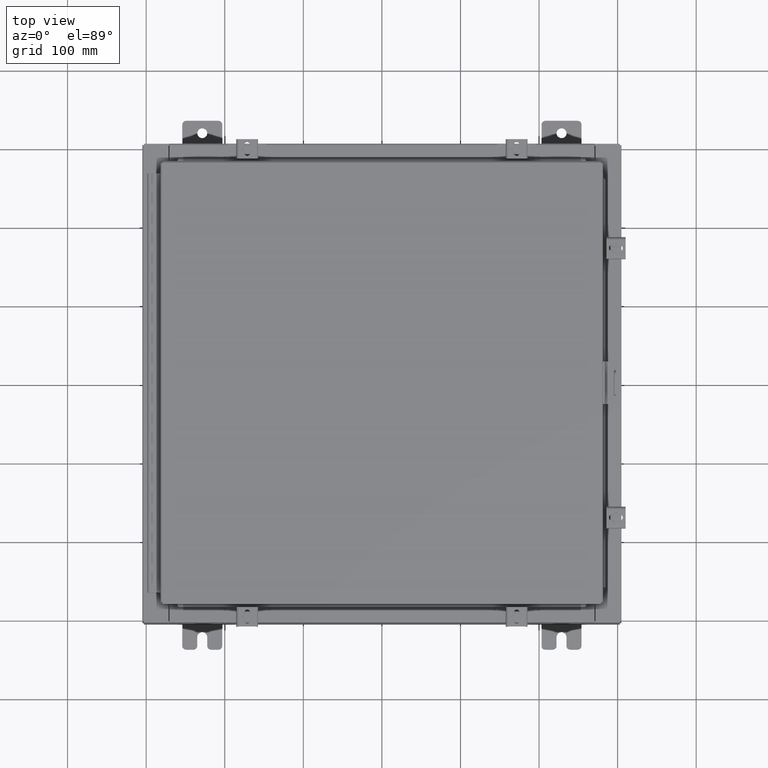
[diagram: clean part render]
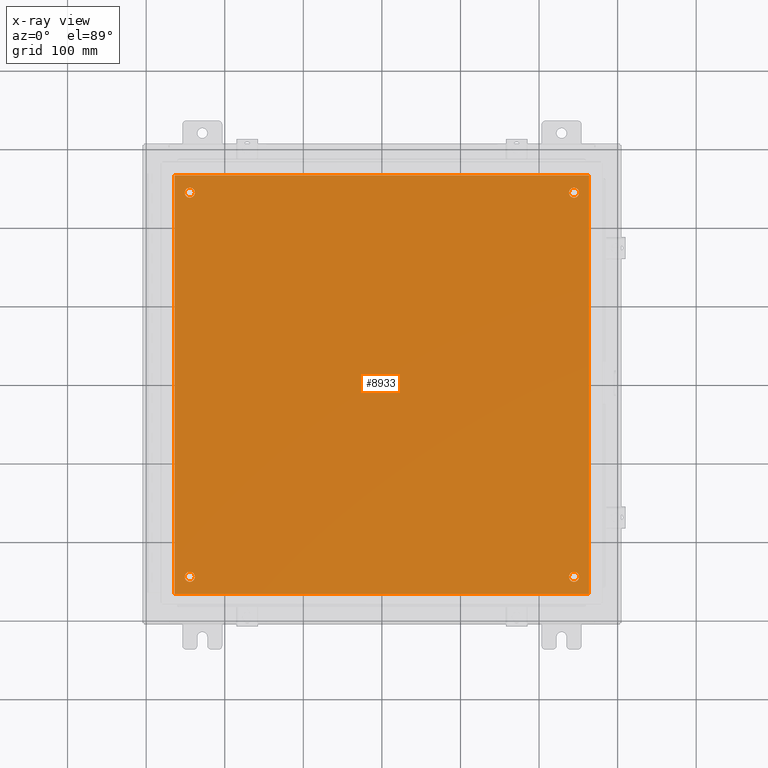
[diagram: x-ray — body ghosted, one internal face saturated and labeled with its STEP entity id]
A machine part, top view, then the same camera in x-ray: the body is ghosted and one INTERNAL B-rep face — a face not visible from any outside direction — is saturated and labeled: STEP entity #8933.
In plain terms, the highlighted planar face has unit normal (0, 0, -1).
Its self-contained STEP definition (entity closure, byte-faithful):
#9 = DIRECTION ( 'NONE',  ( -0.0000000000000000000, -0.0000000000000000000, 1.000000000000000000 ) ) ;
#284 = FACE_BOUND ( 'NONE', #22310, .T. ) ;
#746 = CARTESIAN_POINT ( 'NONE',  ( -9.875000000000005300, 9.625000000000001800, -0.1039999999999999800 ) ) ;
#803 = CIRCLE ( 'NONE', #11384, 0.2499999999999976100 ) ;
#1202 = VERTEX_POINT ( 'NONE', #5761 ) ;
#1517 = VERTEX_POINT ( 'NONE', #746 ) ;
#1518 = FACE_BOUND ( 'NONE', #27780, .T. ) ;
#1814 = DIRECTION ( 'NONE',  ( -1.000000000000000000, 0.0000000000000000000, 0.0000000000000000000 ) ) ;
#2117 = VECTOR ( 'NONE', #18798, 39.37007874015748100 ) ;
#3148 = AXIS2_PLACEMENT_3D ( 'NONE', #7027, #9, #11227 ) ;
#3672 = ORIENTED_EDGE ( 'NONE', *, *, #7257, .F. ) ;
#4098 = CARTESIAN_POINT ( 'NONE',  ( 9.625000000000005300, 9.625000000000001800, -0.1039999999999999800 ) ) ;
#4635 = LINE ( 'NONE', #7904, #28747 ) ;
#4694 = VERTEX_POINT ( 'NONE', #13521 ) ;
#4823 = ORIENTED_EDGE ( 'NONE', *, *, #14046, .T. ) ;
#5175 = EDGE_CURVE ( 'NONE', #1202, #12077, #19218, .T. ) ;
#5304 = EDGE_CURVE ( 'NONE', #20595, #7932, #15634, .T. ) ;
#5761 = CARTESIAN_POINT ( 'NONE',  ( -9.375000000000005300, -9.625000000000001800, -0.1039999999999999800 ) ) ;
#6820 = DIRECTION ( 'NONE',  ( -1.000000000000000000, 0.0000000000000000000, 0.0000000000000000000 ) ) ;
#7027 = CARTESIAN_POINT ( 'NONE',  ( 9.625000000000005300, -9.625000000000001800, -0.1039999999999999800 ) ) ;
#7187 = CARTESIAN_POINT ( 'NONE',  ( -9.875000000000005300, -9.625000000000001800, -0.1039999999999999800 ) ) ;
#7257 = EDGE_CURVE ( 'NONE', #7932, #9434, #14102, .T. ) ;
#7869 = CARTESIAN_POINT ( 'NONE',  ( 0.0000000000000000000, 0.0000000000000000000, -0.1039999999999999800 ) ) ;
#7904 = CARTESIAN_POINT ( 'NONE',  ( -10.50000000000000000, 10.50000000000000200, -0.1039999999999999800 ) ) ;
#7932 = VERTEX_POINT ( 'NONE', #19510 ) ;
#8340 = DIRECTION ( 'NONE',  ( -0.0000000000000000000, -0.0000000000000000000, 1.000000000000000000 ) ) ;
#8893 = CIRCLE ( 'NONE', #3148, 0.2499999999999976100 ) ;
#8933 = ADVANCED_FACE ( 'NONE', ( #24669, #284, #1518, #24144, #28467 ), #23433, .T. ) ;
#9009 = EDGE_LOOP ( 'NONE', ( #29927, #22641 ) ) ;
#9256 = DIRECTION ( 'NONE',  ( 0.0000000000000000000, 0.0000000000000000000, -1.000000000000000000 ) ) ;
#9434 = VERTEX_POINT ( 'NONE', #31381 ) ;
#10291 = CARTESIAN_POINT ( 'NONE',  ( -10.38299999999999900, 10.50000000000000400, -0.1040000000000031300 ) ) ;
#10595 = VERTEX_POINT ( 'NONE', #19329 ) ;
#10681 = VERTEX_POINT ( 'NONE', #24828 ) ;
#10750 = DIRECTION ( 'NONE',  ( -0.0000000000000000000, -0.0000000000000000000, 1.000000000000000000 ) ) ;
#11178 = CARTESIAN_POINT ( 'NONE',  ( -10.50000000000000200, -10.50000000000000000, -0.1039999999999999800 ) ) ;
#11227 = DIRECTION ( 'NONE',  ( -1.000000000000000000, 0.0000000000000000000, 0.0000000000000000000 ) ) ;
#11316 = ORIENTED_EDGE ( 'NONE', *, *, #5304, .F. ) ;
#11384 = AXIS2_PLACEMENT_3D ( 'NONE', #28577, #24382, #1814 ) ;
#11847 = AXIS2_PLACEMENT_3D ( 'NONE', #28803, #30359, #6820 ) ;
#11912 = DIRECTION ( 'NONE',  ( 0.0000000000000000000, -1.000000000000000000, 0.0000000000000000000 ) ) ;
#12077 = VERTEX_POINT ( 'NONE', #7187 ) ;
#12270 = EDGE_CURVE ( 'NONE', #10681, #4694, #26044, .T. ) ;
#12758 = ORIENTED_EDGE ( 'NONE', *, *, #14437, .T. ) ;
#12886 = VERTEX_POINT ( 'NONE', #17875 ) ;
#12969 = ORIENTED_EDGE ( 'NONE', *, *, #21338, .F. ) ;
#13068 = AXIS2_PLACEMENT_3D ( 'NONE', #7869, #9256, #22738 ) ;
#13112 = EDGE_CURVE ( 'NONE', #1517, #10595, #13207, .T. ) ;
#13125 = AXIS2_PLACEMENT_3D ( 'NONE', #14680, #24645, #16699 ) ;
#13180 = DIRECTION ( 'NONE',  ( -1.000000000000000000, -0.0000000000000000000, -0.0000000000000000000 ) ) ;
#13207 = CIRCLE ( 'NONE', #28865, 0.2499999999999987000 ) ;
#13334 = VERTEX_POINT ( 'NONE', #10291 ) ;
#13521 = CARTESIAN_POINT ( 'NONE',  ( 9.875000000000003600, 9.625000000000001800, -0.1039999999999999800 ) ) ;
#13882 = DIRECTION ( 'NONE',  ( -1.000000000000000000, 0.0000000000000000000, 0.0000000000000000000 ) ) ;
#14046 = EDGE_CURVE ( 'NONE', #4694, #10681, #24163, .T. ) ;
#14102 = LINE ( 'NONE', #16586, #27019 ) ;
#14437 = EDGE_CURVE ( 'NONE', #10595, #1517, #30413, .T. ) ;
#14487 = EDGE_CURVE ( 'NONE', #12886, #30421, #803, .T. ) ;
#14680 = CARTESIAN_POINT ( 'NONE',  ( 9.625000000000005300, 9.625000000000001800, -0.1039999999999999800 ) ) ;
#15634 = LINE ( 'NONE', #11178, #2117 ) ;
#15722 = DIRECTION ( 'NONE',  ( -0.0000000000000000000, -0.0000000000000000000, 1.000000000000000000 ) ) ;
#16586 = CARTESIAN_POINT ( 'NONE',  ( 10.38300000000000100, -10.50000000000000200, -0.1040000000000009100 ) ) ;
#16682 = DIRECTION ( 'NONE',  ( 0.0000000000000000000, 1.000000000000000000, 0.0000000000000000000 ) ) ;
#16699 = DIRECTION ( 'NONE',  ( -1.000000000000000000, 0.0000000000000000000, 0.0000000000000000000 ) ) ;
#17672 = EDGE_LOOP ( 'NONE', ( #12758, #32245 ) ) ;
#17875 = CARTESIAN_POINT ( 'NONE',  ( 9.875000000000003600, -9.625000000000001800, -0.1039999999999999800 ) ) ;
#18712 = EDGE_CURVE ( 'NONE', #30421, #12886, #8893, .T. ) ;
#18798 = DIRECTION ( 'NONE',  ( 1.000000000000000000, 0.0000000000000000000, 0.0000000000000000000 ) ) ;
#19218 = CIRCLE ( 'NONE', #26356, 0.2499999999999987000 ) ;
#19329 = CARTESIAN_POINT ( 'NONE',  ( -9.375000000000005300, 9.625000000000001800, -0.1039999999999999800 ) ) ;
#19510 = CARTESIAN_POINT ( 'NONE',  ( 10.38299999999999900, -10.50000000000000000, -0.1039999999999999800 ) ) ;
#19723 = AXIS2_PLACEMENT_3D ( 'NONE', #30864, #10750, #13882 ) ;
#20595 = VERTEX_POINT ( 'NONE', #30371 ) ;
#21070 = EDGE_CURVE ( 'NONE', #12077, #1202, #22719, .T. ) ;
#21338 = EDGE_CURVE ( 'NONE', #9434, #13334, #4635, .T. ) ;
#21678 = DIRECTION ( 'NONE',  ( -1.000000000000000000, 0.0000000000000000000, 0.0000000000000000000 ) ) ;
#22310 = EDGE_LOOP ( 'NONE', ( #26102, #32505 ) ) ;
#22641 = ORIENTED_EDGE ( 'NONE', *, *, #21070, .T. ) ;
#22665 = AXIS2_PLACEMENT_3D ( 'NONE', #4098, #8340, #21678 ) ;
#22719 = CIRCLE ( 'NONE', #19723, 0.2499999999999987000 ) ;
#22738 = DIRECTION ( 'NONE',  ( -1.000000000000000000, 0.0000000000000000000, -0.0000000000000000000 ) ) ;
#23433 = PLANE ( 'NONE',  #13068 ) ;
#23782 = CARTESIAN_POINT ( 'NONE',  ( 9.375000000000007100, -9.625000000000001800, -0.1039999999999999800 ) ) ;
#24100 = ORIENTED_EDGE ( 'NONE', *, *, #32424, .F. ) ;
#24144 = FACE_BOUND ( 'NONE', #17672, .T. ) ;
#24163 = CIRCLE ( 'NONE', #13125, 0.2499999999999976100 ) ;
#24382 = DIRECTION ( 'NONE',  ( -0.0000000000000000000, -0.0000000000000000000, 1.000000000000000000 ) ) ;
#24645 = DIRECTION ( 'NONE',  ( -0.0000000000000000000, -0.0000000000000000000, 1.000000000000000000 ) ) ;
#24648 = ORIENTED_EDGE ( 'NONE', *, *, #12270, .T. ) ;
#24669 = FACE_BOUND ( 'NONE', #9009, .T. ) ;
#24828 = CARTESIAN_POINT ( 'NONE',  ( 9.375000000000007100, 9.625000000000001800, -0.1039999999999999800 ) ) ;
#25691 = DIRECTION ( 'NONE',  ( -1.000000000000000000, 0.0000000000000000000, 0.0000000000000000000 ) ) ;
#25797 = DIRECTION ( 'NONE',  ( -0.0000000000000000000, -0.0000000000000000000, 1.000000000000000000 ) ) ;
#26044 = CIRCLE ( 'NONE', #22665, 0.2499999999999976100 ) ;
#26102 = ORIENTED_EDGE ( 'NONE', *, *, #14487, .T. ) ;
#26187 = VECTOR ( 'NONE', #11912, 39.37007874015748100 ) ;
#26262 = EDGE_LOOP ( 'NONE', ( #11316, #24100, #12969, #3672 ) ) ;
#26266 = CARTESIAN_POINT ( 'NONE',  ( -9.625000000000005300, -9.625000000000001800, -0.1039999999999999800 ) ) ;
#26356 = AXIS2_PLACEMENT_3D ( 'NONE', #26266, #25797, #25691 ) ;
#27019 = VECTOR ( 'NONE', #16682, 39.37007874015748100 ) ;
#27780 = EDGE_LOOP ( 'NONE', ( #4823, #24648 ) ) ;
#28425 = DIRECTION ( 'NONE',  ( -1.000000000000000000, 0.0000000000000000000, 0.0000000000000000000 ) ) ;
#28467 = FACE_OUTER_BOUND ( 'NONE', #26262, .T. ) ;
#28577 = CARTESIAN_POINT ( 'NONE',  ( 9.625000000000005300, -9.625000000000001800, -0.1039999999999999800 ) ) ;
#28747 = VECTOR ( 'NONE', #13180, 39.37007874015748100 ) ;
#28803 = CARTESIAN_POINT ( 'NONE',  ( -9.625000000000005300, 9.625000000000001800, -0.1039999999999999800 ) ) ;
#28838 = LINE ( 'NONE', #32552, #26187 ) ;
#28865 = AXIS2_PLACEMENT_3D ( 'NONE', #30565, #15722, #28425 ) ;
#29927 = ORIENTED_EDGE ( 'NONE', *, *, #5175, .T. ) ;
#30359 = DIRECTION ( 'NONE',  ( -0.0000000000000000000, -0.0000000000000000000, 1.000000000000000000 ) ) ;
#30371 = CARTESIAN_POINT ( 'NONE',  ( -10.38299999999999900, -10.50000000000000000, -0.1040000000000031300 ) ) ;
#30413 = CIRCLE ( 'NONE', #11847, 0.2499999999999987000 ) ;
#30421 = VERTEX_POINT ( 'NONE', #23782 ) ;
#30565 = CARTESIAN_POINT ( 'NONE',  ( -9.625000000000005300, 9.625000000000001800, -0.1039999999999999800 ) ) ;
#30864 = CARTESIAN_POINT ( 'NONE',  ( -9.625000000000005300, -9.625000000000001800, -0.1039999999999999800 ) ) ;
#31381 = CARTESIAN_POINT ( 'NONE',  ( 10.38300000000000100, 10.50000000000000200, -0.1039999999999999800 ) ) ;
#32245 = ORIENTED_EDGE ( 'NONE', *, *, #13112, .T. ) ;
#32424 = EDGE_CURVE ( 'NONE', #13334, #20595, #28838, .T. ) ;
#32505 = ORIENTED_EDGE ( 'NONE', *, *, #18712, .T. ) ;
#32552 = CARTESIAN_POINT ( 'NONE',  ( -10.38299999999999900, 10.50000000000000400, -0.1040000000000031300 ) ) ;